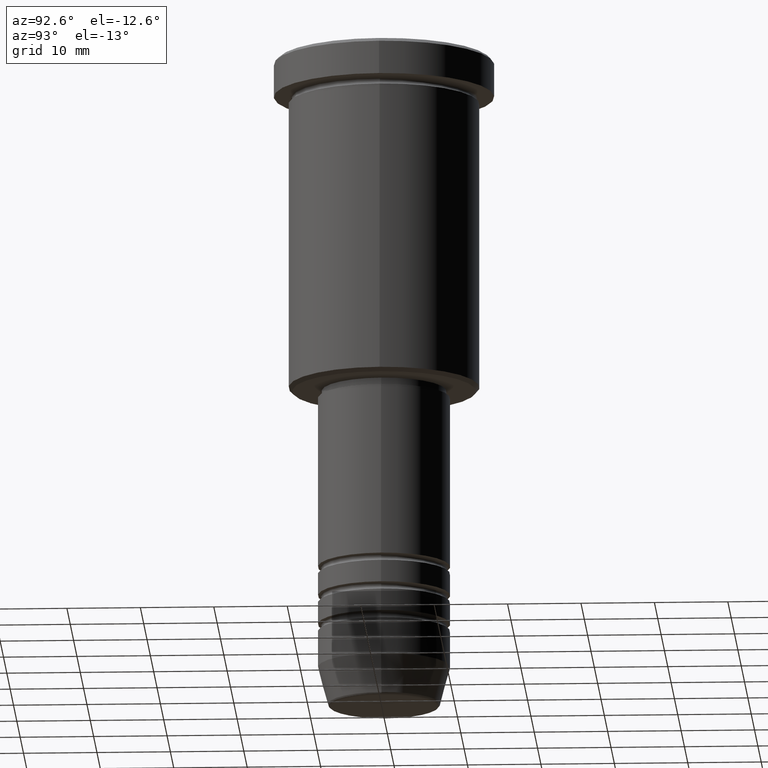
[diagram: clean part render]
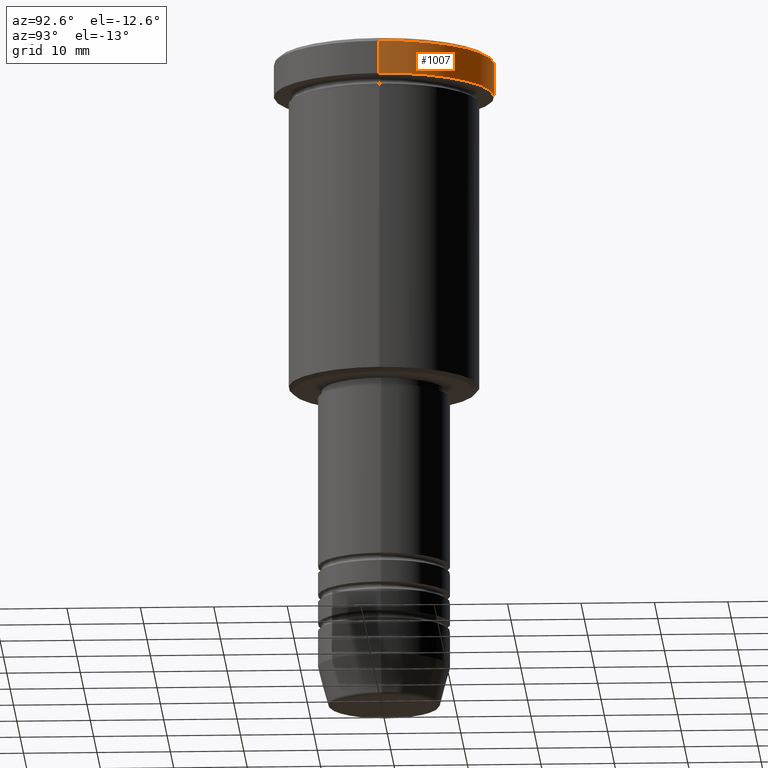
[diagram: same view with one face highlighted and labeled with its STEP entity id]
A machine part, auxiliary view. The second image highlights one B-rep face of the part: STEP entity #1007.
In plain terms, the highlighted cylindrical surface (partial cylindrical patch) has radius 15 mm, axis along (-0, -0, 1).
Its self-contained STEP definition (entity closure, byte-faithful):
#11 = AXIS2_PLACEMENT_3D ( 'NONE', #794, #898, #604 ) ;
#26 = ORIENTED_EDGE ( 'NONE', *, *, #765, .T. ) ;
#51 = CIRCLE ( 'NONE', #894, 15.00000000000000000 ) ;
#80 = CARTESIAN_POINT ( 'NONE',  ( 15.00000000000000000, 0.000000000000000000, -0.5000000000000108802 ) ) ;
#87 = CARTESIAN_POINT ( 'NONE',  ( 15.00000000000000000, 0.000000000000000000, 0.000000000000000000 ) ) ;
#99 = CARTESIAN_POINT ( 'NONE',  ( -15.00000000000000000, 1.836970198721029589E-15, -4.999999999999999112 ) ) ;
#130 = ORIENTED_EDGE ( 'NONE', *, *, #1123, .T. ) ;
#169 = VERTEX_POINT ( 'NONE', #80 ) ;
#176 = LINE ( 'NONE', #87, #1077 ) ;
#191 = EDGE_LOOP ( 'NONE', ( #130, #26, #1013, #304 ) ) ;
#192 = DIRECTION ( 'NONE',  ( -0.000000000000000000, -0.000000000000000000, 1.000000000000000000 ) ) ;
#231 = CARTESIAN_POINT ( 'NONE',  ( -15.00000000000000000, 1.836970198721029589E-15, -0.5000000000000108802 ) ) ;
#304 = ORIENTED_EDGE ( 'NONE', *, *, #315, .F. ) ;
#315 = EDGE_CURVE ( 'NONE', #774, #169, #176, .T. ) ;
#360 = LINE ( 'NONE', #379, #1025 ) ;
#371 = DIRECTION ( 'NONE',  ( 1.000000000000000000, 0.000000000000000000, 0.000000000000000000 ) ) ;
#377 = VERTEX_POINT ( 'NONE', #231 ) ;
#379 = CARTESIAN_POINT ( 'NONE',  ( -15.00000000000000000, 1.836970198721029589E-15, 0.000000000000000000 ) ) ;
#384 = DIRECTION ( 'NONE',  ( 0.000000000000000000, 0.000000000000000000, -1.000000000000000000 ) ) ;
#421 = FACE_OUTER_BOUND ( 'NONE', #191, .T. ) ;
#604 = DIRECTION ( 'NONE',  ( 1.000000000000000000, 0.000000000000000000, 0.000000000000000000 ) ) ;
#666 = VERTEX_POINT ( 'NONE', #99 ) ;
#730 = CARTESIAN_POINT ( 'NONE',  ( 0.000000000000000000, 0.000000000000000000, -4.999999999999999112 ) ) ;
#750 = DIRECTION ( 'NONE',  ( -0.000000000000000000, -0.000000000000000000, 1.000000000000000000 ) ) ;
#765 = EDGE_CURVE ( 'NONE', #666, #377, #360, .T. ) ;
#770 = CARTESIAN_POINT ( 'NONE',  ( 0.000000000000000000, 0.000000000000000000, -0.5000000000000108802 ) ) ;
#774 = VERTEX_POINT ( 'NONE', #1109 ) ;
#794 = CARTESIAN_POINT ( 'NONE',  ( 0.000000000000000000, 0.000000000000000000, 0.000000000000000000 ) ) ;
#823 = DIRECTION ( 'NONE',  ( -0.000000000000000000, -0.000000000000000000, 1.000000000000000000 ) ) ;
#837 = AXIS2_PLACEMENT_3D ( 'NONE', #730, #192, #371 ) ;
#847 = EDGE_CURVE ( 'NONE', #377, #169, #51, .T. ) ;
#894 = AXIS2_PLACEMENT_3D ( 'NONE', #770, #384, #946 ) ;
#898 = DIRECTION ( 'NONE',  ( -0.000000000000000000, -0.000000000000000000, 1.000000000000000000 ) ) ;
#946 = DIRECTION ( 'NONE',  ( 1.000000000000000000, 0.000000000000000000, 0.000000000000000000 ) ) ;
#992 = CYLINDRICAL_SURFACE ( 'NONE', #11, 15.00000000000000000 ) ;
#1007 = ADVANCED_FACE ( 'NONE', ( #421 ), #992, .T. ) ;
#1013 = ORIENTED_EDGE ( 'NONE', *, *, #847, .T. ) ;
#1025 = VECTOR ( 'NONE', #750, 1000.000000000000000 ) ;
#1026 = CIRCLE ( 'NONE', #837, 15.00000000000000000 ) ;
#1077 = VECTOR ( 'NONE', #823, 1000.000000000000000 ) ;
#1109 = CARTESIAN_POINT ( 'NONE',  ( 15.00000000000000000, 0.000000000000000000, -4.999999999999999112 ) ) ;
#1123 = EDGE_CURVE ( 'NONE', #774, #666, #1026, .T. ) ;